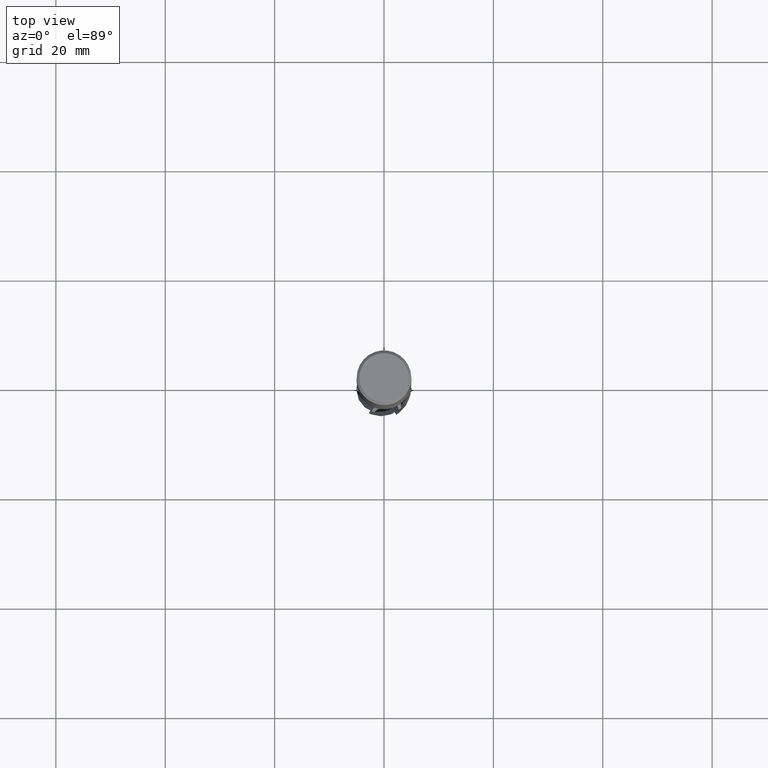
[diagram: clean part render]
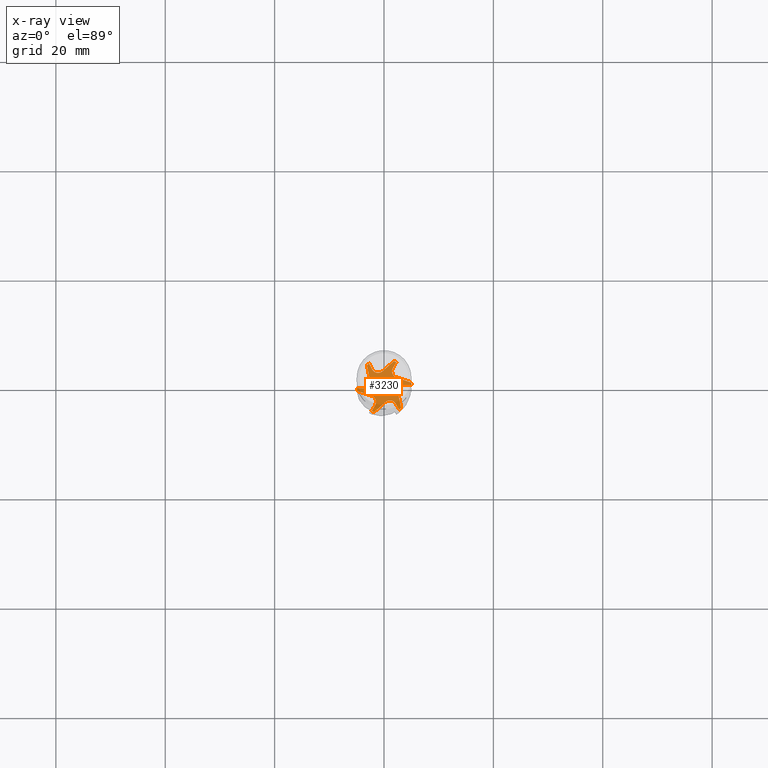
[diagram: x-ray — body ghosted, one internal face saturated and labeled with its STEP entity id]
A machine part, top view, then the same camera in x-ray: the body is ghosted and one INTERNAL B-rep face — a face not visible from any outside direction — is saturated and labeled: STEP entity #3230.
In plain terms, the highlighted planar face has unit normal (0, 0, -1).
Its self-contained STEP definition (entity closure, byte-faithful):
#1866 = VERTEX_POINT('', #1867);
#1867 = CARTESIAN_POINT('', (-3.13089593181059, 3.89839590911082, -95.));
#1882 = VERTEX_POINT('', #1883);
#1883 = CARTESIAN_POINT('', (-2.72242424916442, 4.19385338412797, -95.));
#1893 = EDGE_CURVE('', #1866, #1882, #1894, .T.);
#1894 = CIRCLE('', #1895, 5.);
#1895 = AXIS2_PLACEMENT_3D('', #1896, #1897, #1898);
#1896 = CARTESIAN_POINT('', (3.56192948382191E-31, 5.81707229594993E-15, -95.));
#1897 = DIRECTION('', (3.74939945665464E-33, 6.12323399573677E-17, -1.));
#1898 = DIRECTION('', (-1., 6.12323399573677E-17, 0.));
#1922 = EDGE_CURVE('', #1923, #1925, #1927, .T.);
#1923 = VERTEX_POINT('', #1924);
#1924 = CARTESIAN_POINT('', (1.810661925394, 4.66063336810873, -95.));
#1925 = VERTEX_POINT('', #1926);
#1926 = CARTESIAN_POINT('', (-0.276617074000889, 2.82010910137833, -95.));
#1927 = LINE('', #1928, #1929);
#1928 = CARTESIAN_POINT('', (1.810661925394, 4.66063336810874, -95.));
#1929 = VECTOR('', #1930, 2.78285163056502);
#1930 = DIRECTION('', (-2.08727899939488, -1.8405242667304, 0.));
#1974 = EDGE_CURVE('', #1925, #1975, #1977, .T.);
#1975 = VERTEX_POINT('', #1976);
#1976 = CARTESIAN_POINT('', (-2.16090540956273, 3.15557365704495, -95.));
#1977 = B_SPLINE_CURVE_WITH_KNOTS('', 3, (#1978, #1979, #1980, #1981, #1982, #1983, #1984, #1985, #1986, #1987, #1988, #1989, #1990, #1991, #1992, #1993, #1994, #1995, #1996, #1997, #1998, #1999, #2000, #2001, #2002, #2003, #2004, #2005, #2006, #2007, #2008, #2009, #2010, #2011, #2012, #2013, #2014, #2015, #2016, #2017, #2018, #2019, #2020, #2021, #2022, #2023, #2024, #2025, #2026, #2027, #2028, #2029, #2030, #2031, #2032, #2033, #2034, #2035), .UNSPECIFIED., .F., .U., (4, 3, 3, 3, 3, 3, 3, 3, 3, 3, 3, 3, 3, 3, 3, 3, 3, 3, 3, 4), (0., 0.132181780226918, 0.264161609050317, 0.395944703751725, 0.527534966261595, 0.658935085210019, 0.790146605647413, 0.921169970287258, 1.05200453455494, 1.09086405534845, 1.10815835505043, 1.24032531467485, 1.37229074739479, 1.50405977109452, 1.63563619688982, 1.76702262867054, 1.89822053065169, 2.02923026666097, 2.16005111334351, 2.1971622963427), .UNSPECIFIED.);
#1978 = CARTESIAN_POINT('', (-0.276617074000886, 2.82010910137834, -95.));
#1979 = CARTESIAN_POINT('', (-0.309664740040039, 2.79096827673463, -95.));
#1980 = CARTESIAN_POINT('', (-0.344340228098947, 2.76357641654165, -95.));
#1981 = CARTESIAN_POINT('', (-0.380340303260003, 2.73817306085881, -95.));
#1982 = CARTESIAN_POINT('', (-0.416285376395114, 2.71280851720683, -95.));
#1983 = CARTESIAN_POINT('', (-0.453655518578435, 2.68935262182036, -95.));
#1984 = CARTESIAN_POINT('', (-0.492124925967068, 2.66800987006412, -95.));
#1985 = CARTESIAN_POINT('', (-0.530536989402815, 2.64669893262044, -95.));
#1986 = CARTESIAN_POINT('', (-0.570156412445319, 2.62743303271986, -95.));
#1987 = CARTESIAN_POINT('', (-0.610638808133471, 2.61037963682731, -95.));
#1988 = CARTESIAN_POINT('', (-0.651061967778511, 2.59335119439113, -95.));
#1989 = CARTESIAN_POINT('', (-0.692462435513561, 2.57847953657634, -95.));
#1990 = CARTESIAN_POINT('', (-0.734481392974172, 2.56589355622461, -95.));
#1991 = CARTESIAN_POINT('', (-0.77643963443599, 2.55332576219672, -95.));
#1992 = CARTESIAN_POINT('', (-0.819135528157474, 2.54300079651158, -95.));
#1993 = CARTESIAN_POINT('', (-0.862200094628772, 2.53500788790865, -95.));
#1994 = CARTESIAN_POINT('', (-0.905202850553933, 2.5270264515226, -95.));
#1995 = CARTESIAN_POINT('', (-0.948696828047242, 2.52134742112806, -95.));
#1996 = CARTESIAN_POINT('', (-0.992307226423857, 2.51801973463794, -95.));
#1997 = CARTESIAN_POINT('', (-1.03585508799532, 2.51469682001163, -95.));
#1998 = CARTESIAN_POINT('', (-1.07964385408409, 2.51370896696819, -95.));
#1999 = CARTESIAN_POINT('', (-1.12329726283057, 2.51506466379024, -95.));
#2000 = CARTESIAN_POINT('', (-1.16688776844645, 2.51641840709763, -95.));
#2001 = CARTESIAN_POINT('', (-1.21046788951439, 2.52011280089533, -95.));
#2002 = CARTESIAN_POINT('', (-1.25366423309878, 2.52611619174798, -95.));
#2003 = CARTESIAN_POINT('', (-1.26649409362621, 2.52789927478094, -95.));
#2004 = CARTESIAN_POINT('', (-1.27929723352474, 2.52988649837834, -95.));
#2005 = CARTESIAN_POINT('', (-1.2920639567889, 2.53207635758662, -95.));
#2006 = CARTESIAN_POINT('', (-1.2977457442591, 2.53305094709982, -95.));
#2007 = CARTESIAN_POINT('', (-1.30342078143895, 2.53406574292223, -95.));
#2008 = CARTESIAN_POINT('', (-1.30908821695109, 2.5351205928127, -95.));
#2009 = CARTESIAN_POINT('', (-1.35240004416674, 2.5431819948519, -95.));
#2010 = CARTESIAN_POINT('', (-1.39533804281387, 2.5536027114388, -95.));
#2011 = CARTESIAN_POINT('', (-1.43752680686344, 2.56629163446502, -95.));
#2012 = CARTESIAN_POINT('', (-1.47965124189276, 2.57896120954387, -95.));
#2013 = CARTESIAN_POINT('', (-1.52115121460268, 2.59392889767512, -95.));
#2014 = CARTESIAN_POINT('', (-1.56166499483303, 2.61106423457477, -95.));
#2015 = CARTESIAN_POINT('', (-1.60211847691017, 2.62817406832059, -95.));
#2016 = CARTESIAN_POINT('', (-1.64170598118759, 2.64749468518473, -95.));
#2017 = CARTESIAN_POINT('', (-1.68008347147446, 2.6688581788657, -95.));
#2018 = CARTESIAN_POINT('', (-1.71840486796933, 2.69019044696725, -95.));
#2019 = CARTESIAN_POINT('', (-1.75563056199583, 2.71362126732865, -95.));
#2020 = CARTESIAN_POINT('', (-1.79143798570451, 2.73894760735286, -95.));
#2021 = CARTESIAN_POINT('', (-1.82719370413132, 2.7642373765933, -95.));
#2022 = CARTESIAN_POINT('', (-1.86163830917815, 2.79149006757793, -95.));
#2023 = CARTESIAN_POINT('', (-1.8944741911566, 2.82047021048906, -95.));
#2024 = CARTESIAN_POINT('', (-1.92726295607613, 2.84940876904129, -95.));
#2025 = CARTESIAN_POINT('', (-1.9585418549032, 2.88015297659738, -95.));
#2026 = CARTESIAN_POINT('', (-1.98804140378726, 2.91243795594792, -95.));
#2027 = CARTESIAN_POINT('', (-2.01749864398192, 2.94467663170348, -95.));
#2028 = CARTESIAN_POINT('', (-2.04526606287668, 2.9785440345026, -95.));
#2029 = CARTESIAN_POINT('', (-2.07110511408433, 3.01374921376711, -95.));
#2030 = CARTESIAN_POINT('', (-2.09690691064866, 3.04890363434138, -95.));
#2031 = CARTESIAN_POINT('', (-2.12085963827838, 3.08549241606467, -95.));
#2032 = CARTESIAN_POINT('', (-2.14275811379077, 3.12320213314254, -95.));
#2033 = CARTESIAN_POINT('', (-2.14897026080519, 3.13389960412529, -95.));
#2034 = CARTESIAN_POINT('', (-2.1550207524491, 3.14469259705015, -95.));
#2035 = CARTESIAN_POINT('', (-2.16090540956273, 3.15557365704495, -95.));
#2084 = EDGE_CURVE('', #1975, #1882, #2085, .T.);
#2085 = LINE('', #2086, #2087);
#2086 = CARTESIAN_POINT('', (-2.16090540956273, 3.15557365704495, -95.));
#2087 = VECTOR('', #2088, 1.18039323909416);
#2088 = DIRECTION('', (-0.561518839601487, 1.03827972708312, 0.));
#2110 = VERTEX_POINT('', #2111);
#2111 = CARTESIAN_POINT('', (-4.94155785720459, -0.76223745899791, -95.));
#2126 = VERTEX_POINT('', #2127);
#2127 = CARTESIAN_POINT('', (-4.99319569498437, -0.260761867590947, -95.));
#2137 = EDGE_CURVE('', #2110, #2126, #2138, .T.);
#2138 = CIRCLE('', #2139, 5.);
#2139 = AXIS2_PLACEMENT_3D('', #2140, #2141, #2142);
#2140 = CARTESIAN_POINT('', (3.56192948382191E-31, 5.81707229594993E-15, -95.));
#2141 = DIRECTION('', (3.74939945665464E-33, 6.12323399573677E-17, -1.));
#2142 = DIRECTION('', (-1., 6.12323399573677E-17, 0.));
#2166 = EDGE_CURVE('', #2167, #2169, #2171, .T.);
#2167 = VERTEX_POINT('', #2168);
#2168 = CARTESIAN_POINT('', (-2.58059466023778, 1.17049713748388, -95.));
#2169 = VERTEX_POINT('', #2170);
#2170 = CARTESIAN_POINT('', (-3.81325965529525, -0.293612151334068, -95.));
#2171 = B_SPLINE_CURVE_WITH_KNOTS('', 3, (#2172, #2173, #2174, #2175, #2176, #2177, #2178, #2179, #2180, #2181, #2182, #2183, #2184, #2185, #2186, #2187, #2188, #2189, #2190, #2191, #2192, #2193, #2194, #2195, #2196, #2197, #2198, #2199, #2200, #2201, #2202, #2203, #2204, #2205, #2206, #2207, #2208, #2209, #2210, #2211, #2212, #2213, #2214, #2215, #2216, #2217, #2218, #2219, #2220, #2221, #2222, #2223, #2224, #2225, #2226, #2227, #2228, #2229), .UNSPECIFIED., .F., .U., (4, 3, 3, 3, 3, 3, 3, 3, 3, 3, 3, 3, 3, 3, 3, 3, 3, 3, 3, 4), (0., 0.132181780226912, 0.264161609050307, 0.395944703751706, 0.527534966261566, 0.658935085209976, 0.790146605647381, 0.921169970287232, 1.05200453455491, 1.09086405534841, 1.10815835505038, 1.24032531467481, 1.37229074739474, 1.50405977109446, 1.63563619688977, 1.76702262867049, 1.89822053065163, 2.02923026666089, 2.16005111334343, 2.19716229634268), .UNSPECIFIED.);
#2172 = CARTESIAN_POINT('', (-2.58059466023778, 1.17049713748387, -95.));
#2173 = CARTESIAN_POINT('', (-2.57188179882868, 1.12730660683633, -95.));
#2174 = CARTESIAN_POINT('', (-2.56549749607412, 1.08358082319221, -95.));
#2175 = CARTESIAN_POINT('', (-2.56149758229193, 1.03970216572316, -95.));
#2176 = CARTESIAN_POINT('', (-2.55750377970147, 0.995890547421279, -95.));
#2177 = CARTESIAN_POINT('', (-2.55587544951993, 0.951799107254254, -95.));
#2178 = CARTESIAN_POINT('', (-2.55662678800667, 0.907812247309041, -95.));
#2179 = CARTESIAN_POINT('', (-2.55737700651986, 0.863890955840071, -95.));
#2180 = CARTESIAN_POINT('', (-2.56050195930044, 0.819946579051691, -95.));
#2181 = CARTESIAN_POINT('', (-2.56597448308077, 0.776361098033428, -95.));
#2182 = CARTESIAN_POINT('', (-2.57143899916668, 0.732839393661502, -95.));
#2183 = CARTESIAN_POINT('', (-2.5792599995702, 0.689549707966997, -95.));
#2184 = CARTESIAN_POINT('', (-2.58936969958438, 0.646867233189709, -95.));
#2185 = CARTESIAN_POINT('', (-2.59946479141761, 0.604246433171715, -95.));
#2186 = CARTESIAN_POINT('', (-2.6118710557018, 0.562108221729059, -95.));
#2187 = CARTESIAN_POINT('', (-2.62648127703719, 0.520816758860493, -95.));
#2188 = CARTESIAN_POINT('', (-2.64107052833076, 0.479584561603531, -95.));
#2189 = CARTESIAN_POINT('', (-2.65789933248689, 0.43907815698543, -95.));
#2190 = CARTESIAN_POINT('', (-2.67682267063893, 0.399646600877059, -95.));
#2191 = CARTESIAN_POINT('', (-2.69571887294367, 0.360271589162531, -95.));
#2192 = CARTESIAN_POINT('', (-2.71675775015722, 0.321855478807556, -95.));
#2193 = CARTESIAN_POINT('', (-2.73975852241819, 0.284728366282341, -95.));
#2194 = CARTESIAN_POINT('', (-2.76272615132052, 0.247654752708874, -95.));
#2195 = CARTESIAN_POINT('', (-2.78771565073488, 0.211760457662888, -95.));
#2196 = CARTESIAN_POINT('', (-2.81451291151432, 0.177353022194532, -95.));
#2197 = CARTESIAN_POINT('', (-2.82247203698163, 0.167133578567247, -95.));
#2198 = CARTESIAN_POINT('', (-2.83059459304925, 0.157039345965617, -95.));
#2199 = CARTESIAN_POINT('', (-2.83887442838641, 0.147077968899915, -95.));
#2200 = CARTESIAN_POINT('', (-2.8425593413982, 0.142644691368419, -95.));
#2201 = CARTESIAN_POINT('', (-2.84627569894998, 0.138237362914451, -95.));
#2202 = CARTESIAN_POINT('', (-2.85002294350838, 0.133856644731862, -95.));
#2203 = CARTESIAN_POINT('', (-2.87866023607227, 0.100378203098382, -95.));
#2204 = CARTESIAN_POINT('', (-2.90915384068572, 0.0684031637757519, -95.));
#2205 = CARTESIAN_POINT('', (-2.94123715239788, 0.0382110838676613, -95.));
#2206 = CARTESIAN_POINT('', (-2.97327154378598, 0.00806504055163335, -95.));
#2207 = CARTESIAN_POINT('', (-3.00698392829852, -0.0203911460058925, -95.));
#2208 = CARTESIAN_POINT('', (-3.04208045547119, -0.0469094404388896, -95.));
#2209 = CARTESIAN_POINT('', (-3.07712474718817, -0.0733882667163283, -95.));
#2210 = CARTESIAN_POINT('', (-3.11365064434802, -0.0980117426609153, -95.));
#2211 = CARTESIAN_POINT('', (-3.15134071773276, -0.120565877342352, -95.));
#2212 = CARTESIAN_POINT('', (-3.18897570207648, -0.143087046164638, -95.));
#2213 = CARTESIAN_POINT('', (-3.22788023475421, -0.163610032684396, -95.));
#2214 = CARTESIAN_POINT('', (-3.26771720045439, -0.181957001248084, -95.));
#2215 = CARTESIAN_POINT('', (-3.30749664228587, -0.200277477116048, -95.));
#2216 = CARTESIAN_POINT('', (-3.34832046752347, -0.216481034617599, -95.));
#2217 = CARTESIAN_POINT('', (-3.38983594847904, -0.230427671111042, -95.));
#2218 = CARTESIAN_POINT('', (-3.43129185779392, -0.244354295213956, -95.));
#2219 = CARTESIAN_POINT('', (-3.47355657197024, -0.256070512422567, -95.));
#2220 = CARTESIAN_POINT('', (-3.5162659586905, -0.265475381481074, -95.));
#2221 = CARTESIAN_POINT('', (-3.5589140909765, -0.274866761937247, -95.));
#2222 = CARTESIAN_POINT('', (-3.60212783160811, -0.281980350698067, -95.));
#2223 = CARTESIAN_POINT('', (-3.64553593679978, -0.286755035821325, -95.));
#2224 = CARTESIAN_POINT('', (-3.68888145635458, -0.291522836822184, -95.));
#2225 = CARTESIAN_POINT('', (-3.73254463463535, -0.293972116577821, -95.));
#2226 = CARTESIAN_POINT('', (-3.7761514453505, -0.294081894136767, -95.));
#2227 = CARTESIAN_POINT('', (-3.78852180048504, -0.294113035771931, -95.));
#2228 = CARTESIAN_POINT('', (-3.80089405236281, -0.293956418778499, -95.));
#2229 = CARTESIAN_POINT('', (-3.81325965529525, -0.29361215133406, -95.));
#2287 = EDGE_CURVE('', #2169, #2126, #2288, .T.);
#2288 = LINE('', #2289, #2290);
#2289 = CARTESIAN_POINT('', (-3.81325965529525, -0.29361215133406, -95.));
#2290 = VECTOR('', #2291, 1.18039323909418);
#2291 = DIRECTION('', (-1.17993603968913, 0.0328502837431074, 0.));
#2312 = EDGE_CURVE('', #1866, #2167, #2313, .T.);
#2313 = LINE('', #2314, #2315);
#2314 = CARTESIAN_POINT('', (-3.1308959318106, 3.89839590911081, -95.));
#2315 = VECTOR('', #2316, 2.78285163056503);
#2316 = DIRECTION('', (0.550301271572817, -2.72789877162694, 0.));
#2338 = VERTEX_POINT('', #2339);
#2339 = CARTESIAN_POINT('', (-1.810661925394, -4.66063336810872, -95.));
#2357 = VERTEX_POINT('', #2358);
#2358 = CARTESIAN_POINT('', (-2.27077144582014, -4.45461525171903, -95.));
#2368 = EDGE_CURVE('', #2338, #2357, #2369, .T.);
#2369 = CIRCLE('', #2370, 5.);
#2370 = AXIS2_PLACEMENT_3D('', #2371, #2372, #2373);
#2371 = CARTESIAN_POINT('', (3.56192948382191E-31, 5.81707229594993E-15, -95.));
#2372 = DIRECTION('', (3.74939945665464E-33, 6.12323399573677E-17, -1.));
#2373 = DIRECTION('', (-1., 6.12323399573677E-17, 0.));
#2397 = EDGE_CURVE('', #2398, #2400, #2402, .T.);
#2398 = VERTEX_POINT('', #2399);
#2399 = CARTESIAN_POINT('', (-2.30397758623689, -1.64961196389445, -95.));
#2400 = VERTEX_POINT('', #2401);
#2401 = CARTESIAN_POINT('', (-1.65235424573252, -3.44918580837901, -95.));
#2402 = B_SPLINE_CURVE_WITH_KNOTS('', 3, (#2403, #2404, #2405, #2406, #2407, #2408, #2409, #2410, #2411, #2412, #2413, #2414, #2415, #2416, #2417, #2418, #2419, #2420, #2421, #2422, #2423, #2424, #2425, #2426, #2427, #2428, #2429, #2430, #2431, #2432, #2433, #2434, #2435, #2436, #2437, #2438, #2439, #2440, #2441, #2442, #2443, #2444, #2445, #2446, #2447, #2448, #2449, #2450, #2451, #2452, #2453, #2454, #2455, #2456, #2457, #2458, #2459, #2460), .UNSPECIFIED., .F., .U., (4, 3, 3, 3, 3, 3, 3, 3, 3, 3, 3, 3, 3, 3, 3, 3, 3, 3, 3, 4), (0., 0.132181780226925, 0.26416160905032, 0.395944703751717, 0.527534966261586, 0.65893508521001, 0.790146605647406, 0.921169970287252, 1.05200453455492, 1.09086405534843, 1.10815835505039, 1.24032531467481, 1.37229074739474, 1.50405977109446, 1.63563619688976, 1.76702262867048, 1.89822053065162, 2.0292302666609, 2.16005111334344, 2.19716229634269), .UNSPECIFIED.);
#2403 = CARTESIAN_POINT('', (-2.30397758623689, -1.64961196389444, -95.));
#2404 = CARTESIAN_POINT('', (-2.26221705878864, -1.66366166989828, -95.));
#2405 = CARTESIAN_POINT('', (-2.22115726797515, -1.67999559334944, -95.));
#2406 = CARTESIAN_POINT('', (-2.18115727903191, -1.69847089513564, -95.));
#2407 = CARTESIAN_POINT('', (-2.14121840330634, -1.71691796978555, -95.));
#2408 = CARTESIAN_POINT('', (-2.10221993094149, -1.7375535145661, -95.));
#2409 = CARTESIAN_POINT('', (-2.0645018620396, -1.76019762275507, -95.));
#2410 = CARTESIAN_POINT('', (-2.02684001711705, -1.78280797678037, -95.));
#2411 = CARTESIAN_POINT('', (-1.99034554685513, -1.80748645366816, -95.));
#2412 = CARTESIAN_POINT('', (-1.95533567494732, -1.83401853879388, -95.));
#2413 = CARTESIAN_POINT('', (-1.92037703138818, -1.86051180072963, -95.));
#2414 = CARTESIAN_POINT('', (-1.88679756405665, -1.88892982860933, -95.));
#2415 = CARTESIAN_POINT('', (-1.85488830661021, -1.9190263230349, -95.));
#2416 = CARTESIAN_POINT('', (-1.82302515698162, -1.94907932902501, -95.));
#2417 = CARTESIAN_POINT('', (-1.79273552754435, -1.98089257478253, -95.));
#2418 = CARTESIAN_POINT('', (-1.76428118240844, -2.01419112904817, -95.));
#2419 = CARTESIAN_POINT('', (-1.73586767777685, -2.04744188991908, -95.));
#2420 = CARTESIAN_POINT('', (-1.70920250443967, -2.08226926414265, -95.));
#2421 = CARTESIAN_POINT('', (-1.68451544421509, -2.1183731337609, -95.));
#2422 = CARTESIAN_POINT('', (-1.65986378494837, -2.15442523084912, -95.));
#2423 = CARTESIAN_POINT('', (-1.63711389607314, -2.19185348816064, -95.));
#2424 = CARTESIAN_POINT('', (-1.61646125958763, -2.2303362975079, -95.));
#2425 = CARTESIAN_POINT('', (-1.59583838287409, -2.26876365438875, -95.));
#2426 = CARTESIAN_POINT('', (-1.57724776122051, -2.30835234323244, -95.));
#2427 = CARTESIAN_POINT('', (-1.56084867841556, -2.34876316955345, -95.));
#2428 = CARTESIAN_POINT('', (-1.55597794335545, -2.36076569621369, -95.));
#2429 = CARTESIAN_POINT('', (-1.55129735952454, -2.37284715241272, -95.));
#2430 = CARTESIAN_POINT('', (-1.54681047159755, -2.38499838868671, -95.));
#2431 = CARTESIAN_POINT('', (-1.54481359713914, -2.3904062557314, -95.));
#2432 = CARTESIAN_POINT('', (-1.54285491751108, -2.39582838000777, -95.));
#2433 = CARTESIAN_POINT('', (-1.54093472655733, -2.40126394808083, -95.));
#2434 = CARTESIAN_POINT('', (-1.52626019190557, -2.4428037917535, -95.));
#2435 = CARTESIAN_POINT('', (-1.51381579787189, -2.48519954766302, -95.));
#2436 = CARTESIAN_POINT('', (-1.50371034553447, -2.52808055059733, -95.));
#2437 = CARTESIAN_POINT('', (-1.49362030189325, -2.57089616899221, -95.));
#2438 = CARTESIAN_POINT('', (-1.48583271369587, -2.61432004368098, -95.));
#2439 = CARTESIAN_POINT('', (-1.4804154606382, -2.65797367501363, -95.));
#2440 = CARTESIAN_POINT('', (-1.47500627027803, -2.70156233503688, -95.));
#2441 = CARTESIAN_POINT('', (-1.47194466316047, -2.74550642784562, -95.));
#2442 = CARTESIAN_POINT('', (-1.47125724625834, -2.78942405620802, -95.));
#2443 = CARTESIAN_POINT('', (-1.47057083410719, -2.83327749313185, -95.));
#2444 = CARTESIAN_POINT('', (-1.47224967275842, -2.877231300013, -95.));
#2445 = CARTESIAN_POINT('', (-1.47627921474992, -2.92090460860089, -95.));
#2446 = CARTESIAN_POINT('', (-1.48030293815458, -2.96451485370929, -95.));
#2447 = CARTESIAN_POINT('', (-1.48668215834534, -3.00797110219549, -95.));
#2448 = CARTESIAN_POINT('', (-1.49536175732246, -3.05089788160006, -95.));
#2449 = CARTESIAN_POINT('', (-1.50402890171782, -3.0937630642552, -95.));
#2450 = CARTESIAN_POINT('', (-1.51501471706707, -3.13622348901988, -95.));
#2451 = CARTESIAN_POINT('', (-1.52822455490326, -3.17791333742894, -95.));
#2452 = CARTESIAN_POINT('', (-1.54141544699462, -3.21954339364067, -95.));
#2453 = CARTESIAN_POINT('', (-1.55686176873148, -3.26052438520061, -95.));
#2454 = CARTESIAN_POINT('', (-1.5744308227155, -3.30050424958837, -95.));
#2455 = CARTESIAN_POINT('', (-1.59197454570597, -3.3404264711635, -95.));
#2456 = CARTESIAN_POINT('', (-1.611684996357, -3.37946453264242, -95.));
#2457 = CARTESIAN_POINT('', (-1.63339333155977, -3.41728402727923, -95.));
#2458 = CARTESIAN_POINT('', (-1.63955153967987, -3.42801263989716, -95.));
#2459 = CARTESIAN_POINT('', (-1.64587329991371, -3.43864901582863, -95.));
#2460 = CARTESIAN_POINT('', (-1.65235424573251, -3.44918580837901, -95.));
#2517 = EDGE_CURVE('', #2400, #2357, #2518, .T.);
#2518 = LINE('', #2519, #2520);
#2519 = CARTESIAN_POINT('', (-1.65235424573251, -3.44918580837901, -95.));
#2520 = VECTOR('', #2521, 1.18039323909418);
#2521 = DIRECTION('', (-0.618417200087631, -1.00542944334002, 0.));
#2542 = EDGE_CURVE('', #2110, #2398, #2543, .T.);
#2543 = LINE('', #2544, #2545);
#2544 = CARTESIAN_POINT('', (-4.94155785720459, -0.762237458997906, -95.));
#2545 = VECTOR('', #2546, 2.78285163056502);
#2546 = DIRECTION('', (2.63758027096769, -0.887374504896537, 0.));
#2568 = VERTEX_POINT('', #2569);
#2569 = CARTESIAN_POINT('', (3.13089593181059, -3.89839590911081, -95.));
#2584 = VERTEX_POINT('', #2585);
#2585 = CARTESIAN_POINT('', (2.72242424916441, -4.19385338412796, -95.));
#2595 = EDGE_CURVE('', #2568, #2584, #2596, .T.);
#2596 = CIRCLE('', #2597, 5.);
#2597 = AXIS2_PLACEMENT_3D('', #2598, #2599, #2600);
#2598 = CARTESIAN_POINT('', (3.56192948382191E-31, 5.81707229594993E-15, -95.));
#2599 = DIRECTION('', (3.74939945665464E-33, 6.12323399573677E-17, -1.));
#2600 = DIRECTION('', (-1., 6.12323399573677E-17, 0.));
#2624 = EDGE_CURVE('', #2625, #2627, #2629, .T.);
#2625 = VERTEX_POINT('', #2626);
#2626 = CARTESIAN_POINT('', (0.276617074000889, -2.82010910137832, -95.));
#2627 = VERTEX_POINT('', #2628);
#2628 = CARTESIAN_POINT('', (2.16090540956273, -3.15557365704494, -95.));
#2629 = B_SPLINE_CURVE_WITH_KNOTS('', 3, (#2630, #2631, #2632, #2633, #2634, #2635, #2636, #2637, #2638, #2639, #2640, #2641, #2642, #2643, #2644, #2645, #2646, #2647, #2648, #2649, #2650, #2651, #2652, #2653, #2654, #2655, #2656, #2657, #2658, #2659, #2660, #2661, #2662, #2663, #2664, #2665, #2666, #2667, #2668, #2669, #2670, #2671, #2672, #2673, #2674, #2675, #2676, #2677, #2678, #2679, #2680, #2681, #2682, #2683, #2684, #2685, #2686, #2687), .UNSPECIFIED., .F., .U., (4, 3, 3, 3, 3, 3, 3, 3, 3, 3, 3, 3, 3, 3, 3, 3, 3, 3, 3, 4), (0., 0.132181780226918, 0.264161609050317, 0.395944703751725, 0.527534966261596, 0.65893508521002, 0.790146605647414, 0.921169970287258, 1.05200453455494, 1.09086405534845, 1.10815835505043, 1.24032531467485, 1.37229074739479, 1.50405977109452, 1.63563619688982, 1.76702262867054, 1.89822053065169, 2.02923026666097, 2.16005111334351, 2.1971622963427), .UNSPECIFIED.);
#2630 = CARTESIAN_POINT('', (0.276617074000885, -2.82010910137833, -95.));
#2631 = CARTESIAN_POINT('', (0.309664740040038, -2.79096827673462, -95.));
#2632 = CARTESIAN_POINT('', (0.344340228098946, -2.76357641654164, -95.));
#2633 = CARTESIAN_POINT('', (0.380340303260003, -2.7381730608588, -95.));
#2634 = CARTESIAN_POINT('', (0.416285376395113, -2.71280851720682, -95.));
#2635 = CARTESIAN_POINT('', (0.453655518578434, -2.68935262182035, -95.));
#2636 = CARTESIAN_POINT('', (0.492124925967068, -2.6680098700641, -95.));
#2637 = CARTESIAN_POINT('', (0.530536989402814, -2.64669893262043, -95.));
#2638 = CARTESIAN_POINT('', (0.570156412445319, -2.62743303271985, -95.));
#2639 = CARTESIAN_POINT('', (0.610638808133471, -2.6103796368273, -95.));
#2640 = CARTESIAN_POINT('', (0.651061967778511, -2.59335119439112, -95.));
#2641 = CARTESIAN_POINT('', (0.692462435513561, -2.57847953657632, -95.));
#2642 = CARTESIAN_POINT('', (0.734481392974173, -2.5658935562246, -95.));
#2643 = CARTESIAN_POINT('', (0.77643963443599, -2.55332576219671, -95.));
#2644 = CARTESIAN_POINT('', (0.819135528157474, -2.54300079651156, -95.));
#2645 = CARTESIAN_POINT('', (0.862200094628772, -2.53500788790864, -95.));
#2646 = CARTESIAN_POINT('', (0.905202850553933, -2.52702645152258, -95.));
#2647 = CARTESIAN_POINT('', (0.948696828047242, -2.52134742112805, -95.));
#2648 = CARTESIAN_POINT('', (0.992307226423857, -2.51801973463793, -95.));
#2649 = CARTESIAN_POINT('', (1.03585508799532, -2.51469682001162, -95.));
#2650 = CARTESIAN_POINT('', (1.07964385408408, -2.51370896696818, -95.));
#2651 = CARTESIAN_POINT('', (1.12329726283057, -2.51506466379023, -95.));
#2652 = CARTESIAN_POINT('', (1.16688776844645, -2.51641840709762, -95.));
#2653 = CARTESIAN_POINT('', (1.21046788951439, -2.52011280089531, -95.));
#2654 = CARTESIAN_POINT('', (1.25366423309878, -2.52611619174797, -95.));
#2655 = CARTESIAN_POINT('', (1.26649409362621, -2.52789927478092, -95.));
#2656 = CARTESIAN_POINT('', (1.27929723352474, -2.52988649837832, -95.));
#2657 = CARTESIAN_POINT('', (1.2920639567889, -2.53207635758661, -95.));
#2658 = CARTESIAN_POINT('', (1.2977457442591, -2.53305094709981, -95.));
#2659 = CARTESIAN_POINT('', (1.30342078143894, -2.53406574292221, -95.));
#2660 = CARTESIAN_POINT('', (1.30908821695109, -2.53512059281269, -95.));
#2661 = CARTESIAN_POINT('', (1.35240004416674, -2.54318199485188, -95.));
#2662 = CARTESIAN_POINT('', (1.39533804281387, -2.55360271143878, -95.));
#2663 = CARTESIAN_POINT('', (1.43752680686344, -2.56629163446501, -95.));
#2664 = CARTESIAN_POINT('', (1.47965124189276, -2.57896120954386, -95.));
#2665 = CARTESIAN_POINT('', (1.52115121460268, -2.59392889767511, -95.));
#2666 = CARTESIAN_POINT('', (1.56166499483303, -2.61106423457476, -95.));
#2667 = CARTESIAN_POINT('', (1.60211847691017, -2.62817406832058, -95.));
#2668 = CARTESIAN_POINT('', (1.64170598118759, -2.64749468518472, -95.));
#2669 = CARTESIAN_POINT('', (1.68008347147446, -2.66885817886569, -95.));
#2670 = CARTESIAN_POINT('', (1.71840486796933, -2.69019044696724, -95.));
#2671 = CARTESIAN_POINT('', (1.75563056199583, -2.71362126732864, -95.));
#2672 = CARTESIAN_POINT('', (1.7914379857045, -2.73894760735284, -95.));
#2673 = CARTESIAN_POINT('', (1.82719370413132, -2.76423737659328, -95.));
#2674 = CARTESIAN_POINT('', (1.86163830917815, -2.79149006757792, -95.));
#2675 = CARTESIAN_POINT('', (1.8944741911566, -2.82047021048905, -95.));
#2676 = CARTESIAN_POINT('', (1.92726295607613, -2.84940876904127, -95.));
#2677 = CARTESIAN_POINT('', (1.9585418549032, -2.88015297659736, -95.));
#2678 = CARTESIAN_POINT('', (1.98804140378726, -2.91243795594791, -95.));
#2679 = CARTESIAN_POINT('', (2.01749864398192, -2.94467663170347, -95.));
#2680 = CARTESIAN_POINT('', (2.04526606287667, -2.97854403450259, -95.));
#2681 = CARTESIAN_POINT('', (2.07110511408433, -3.0137492137671, -95.));
#2682 = CARTESIAN_POINT('', (2.09690691064866, -3.04890363434137, -95.));
#2683 = CARTESIAN_POINT('', (2.12085963827838, -3.08549241606466, -95.));
#2684 = CARTESIAN_POINT('', (2.14275811379077, -3.12320213314253, -95.));
#2685 = CARTESIAN_POINT('', (2.14897026080519, -3.13389960412528, -95.));
#2686 = CARTESIAN_POINT('', (2.1550207524491, -3.14469259705014, -95.));
#2687 = CARTESIAN_POINT('', (2.16090540956273, -3.15557365704494, -95.));
#2744 = EDGE_CURVE('', #2627, #2584, #2745, .T.);
#2745 = LINE('', #2746, #2747);
#2746 = CARTESIAN_POINT('', (2.16090540956273, -3.15557365704494, -95.));
#2747 = VECTOR('', #2748, 1.18039323909416);
#2748 = DIRECTION('', (0.56151883960149, -1.03827972708312, 0.));
#2769 = EDGE_CURVE('', #2338, #2625, #2770, .T.);
#2770 = LINE('', #2771, #2772);
#2771 = CARTESIAN_POINT('', (-1.810661925394, -4.66063336810873, -95.));
#2772 = VECTOR('', #2773, 2.78285163056502);
#2773 = DIRECTION('', (2.08727899939488, 1.8405242667304, 0.));
#2795 = VERTEX_POINT('', #2796);
#2796 = CARTESIAN_POINT('', (4.94155785720459, 0.762237458997922, -95.));
#2811 = VERTEX_POINT('', #2812);
#2812 = CARTESIAN_POINT('', (4.99319569498437, 0.260761867590956, -95.));
#2822 = EDGE_CURVE('', #2795, #2811, #2823, .T.);
#2823 = CIRCLE('', #2824, 5.);
#2824 = AXIS2_PLACEMENT_3D('', #2825, #2826, #2827);
#2825 = CARTESIAN_POINT('', (3.56192948382191E-31, 5.81707229594993E-15, -95.));
#2826 = DIRECTION('', (3.74939945665464E-33, 6.12323399573677E-17, -1.));
#2827 = DIRECTION('', (-1., 6.12323399573677E-17, 0.));
#2851 = EDGE_CURVE('', #2852, #2854, #2856, .T.);
#2852 = VERTEX_POINT('', #2853);
#2853 = CARTESIAN_POINT('', (2.58059466023778, -1.17049713748387, -95.));
#2854 = VERTEX_POINT('', #2855);
#2855 = CARTESIAN_POINT('', (3.81325965529525, 0.293612151334077, -95.));
#2856 = B_SPLINE_CURVE_WITH_KNOTS('', 3, (#2857, #2858, #2859, #2860, #2861, #2862, #2863, #2864, #2865, #2866, #2867, #2868, #2869, #2870, #2871, #2872, #2873, #2874, #2875, #2876, #2877, #2878, #2879, #2880, #2881, #2882, #2883, #2884, #2885, #2886, #2887, #2888, #2889, #2890, #2891, #2892, #2893, #2894, #2895, #2896, #2897, #2898, #2899, #2900, #2901, #2902, #2903, #2904, #2905, #2906, #2907, #2908, #2909, #2910, #2911, #2912, #2913, #2914), .UNSPECIFIED., .F., .U., (4, 3, 3, 3, 3, 3, 3, 3, 3, 3, 3, 3, 3, 3, 3, 3, 3, 3, 3, 4), (0., 0.132181780226912, 0.264161609050307, 0.395944703751707, 0.527534966261567, 0.658935085209977, 0.790146605647382, 0.921169970287232, 1.05200453455491, 1.09086405534841, 1.10815835505038, 1.24032531467481, 1.37229074739474, 1.50405977109447, 1.63563619688977, 1.76702262867049, 1.89822053065163, 2.02923026666089, 2.16005111334343, 2.19716229634268), .UNSPECIFIED.);
#2857 = CARTESIAN_POINT('', (2.58059466023778, -1.17049713748386, -95.));
#2858 = CARTESIAN_POINT('', (2.57188179882868, -1.12730660683632, -95.));
#2859 = CARTESIAN_POINT('', (2.56549749607412, -1.08358082319219, -95.));
#2860 = CARTESIAN_POINT('', (2.56149758229193, -1.03970216572315, -95.));
#2861 = CARTESIAN_POINT('', (2.55750377970147, -0.995890547421268, -95.));
#2862 = CARTESIAN_POINT('', (2.55587544951993, -0.951799107254243, -95.));
#2863 = CARTESIAN_POINT('', (2.55662678800667, -0.90781224730903, -95.));
#2864 = CARTESIAN_POINT('', (2.55737700651986, -0.863890955840059, -95.));
#2865 = CARTESIAN_POINT('', (2.56050195930044, -0.81994657905168, -95.));
#2866 = CARTESIAN_POINT('', (2.56597448308077, -0.776361098033416, -95.));
#2867 = CARTESIAN_POINT('', (2.57143899916668, -0.73283939366149, -95.));
#2868 = CARTESIAN_POINT('', (2.5792599995702, -0.689549707966985, -95.));
#2869 = CARTESIAN_POINT('', (2.58936969958438, -0.646867233189698, -95.));
#2870 = CARTESIAN_POINT('', (2.59946479141761, -0.604246433171704, -95.));
#2871 = CARTESIAN_POINT('', (2.6118710557018, -0.562108221729048, -95.));
#2872 = CARTESIAN_POINT('', (2.62648127703719, -0.520816758860482, -95.));
#2873 = CARTESIAN_POINT('', (2.64107052833076, -0.479584561603519, -95.));
#2874 = CARTESIAN_POINT('', (2.65789933248689, -0.439078156985419, -95.));
#2875 = CARTESIAN_POINT('', (2.67682267063893, -0.399646600877047, -95.));
#2876 = CARTESIAN_POINT('', (2.69571887294367, -0.360271589162519, -95.));
#2877 = CARTESIAN_POINT('', (2.71675775015722, -0.321855478807544, -95.));
#2878 = CARTESIAN_POINT('', (2.73975852241819, -0.28472836628233, -95.));
#2879 = CARTESIAN_POINT('', (2.76272615132052, -0.247654752708862, -95.));
#2880 = CARTESIAN_POINT('', (2.78771565073489, -0.211760457662877, -95.));
#2881 = CARTESIAN_POINT('', (2.81451291151432, -0.177353022194521, -95.));
#2882 = CARTESIAN_POINT('', (2.82247203698164, -0.167133578567236, -95.));
#2883 = CARTESIAN_POINT('', (2.83059459304925, -0.157039345965605, -95.));
#2884 = CARTESIAN_POINT('', (2.83887442838641, -0.147077968899904, -95.));
#2885 = CARTESIAN_POINT('', (2.8425593413982, -0.142644691368408, -95.));
#2886 = CARTESIAN_POINT('', (2.84627569894998, -0.13823736291444, -95.));
#2887 = CARTESIAN_POINT('', (2.85002294350838, -0.133856644731851, -95.));
#2888 = CARTESIAN_POINT('', (2.87866023607227, -0.10037820309837, -95.));
#2889 = CARTESIAN_POINT('', (2.90915384068572, -0.0684031637757406, -95.));
#2890 = CARTESIAN_POINT('', (2.94123715239788, -0.0382110838676498, -95.));
#2891 = CARTESIAN_POINT('', (2.97327154378598, -0.00806504055162204, -95.));
#2892 = CARTESIAN_POINT('', (3.00698392829852, 0.0203911460059042, -95.));
#2893 = CARTESIAN_POINT('', (3.04208045547119, 0.0469094404389012, -95.));
#2894 = CARTESIAN_POINT('', (3.07712474718817, 0.0733882667163399, -95.));
#2895 = CARTESIAN_POINT('', (3.11365064434802, 0.0980117426609268, -95.));
#2896 = CARTESIAN_POINT('', (3.15134071773276, 0.120565877342363, -95.));
#2897 = CARTESIAN_POINT('', (3.18897570207648, 0.14308704616465, -95.));
#2898 = CARTESIAN_POINT('', (3.22788023475421, 0.163610032684407, -95.));
#2899 = CARTESIAN_POINT('', (3.26771720045439, 0.181957001248094, -95.));
#2900 = CARTESIAN_POINT('', (3.30749664228587, 0.200277477116058, -95.));
#2901 = CARTESIAN_POINT('', (3.34832046752347, 0.216481034617609, -95.));
#2902 = CARTESIAN_POINT('', (3.38983594847904, 0.230427671111052, -95.));
#2903 = CARTESIAN_POINT('', (3.43129185779392, 0.244354295213966, -95.));
#2904 = CARTESIAN_POINT('', (3.47355657197024, 0.256070512422577, -95.));
#2905 = CARTESIAN_POINT('', (3.5162659586905, 0.265475381481084, -95.));
#2906 = CARTESIAN_POINT('', (3.55891409097651, 0.274866761937257, -95.));
#2907 = CARTESIAN_POINT('', (3.60212783160811, 0.281980350698078, -95.));
#2908 = CARTESIAN_POINT('', (3.64553593679978, 0.286755035821336, -95.));
#2909 = CARTESIAN_POINT('', (3.68888145635458, 0.291522836822195, -95.));
#2910 = CARTESIAN_POINT('', (3.73254463463535, 0.293972116577818, -95.));
#2911 = CARTESIAN_POINT('', (3.7761514453505, 0.294081894136764, -95.));
#2912 = CARTESIAN_POINT('', (3.78852180048504, 0.294113035771928, -95.));
#2913 = CARTESIAN_POINT('', (3.80089405236281, 0.29395641877851, -95.));
#2914 = CARTESIAN_POINT('', (3.81325965529525, 0.293612151334071, -95.));
#2971 = EDGE_CURVE('', #2854, #2811, #2972, .T.);
#2972 = LINE('', #2973, #2974);
#2973 = CARTESIAN_POINT('', (3.81325965529525, 0.293612151334071, -95.));
#2974 = VECTOR('', #2975, 1.18039323909419);
#2975 = DIRECTION('', (1.17993603968913, -0.0328502837431078, 0.));
#2996 = EDGE_CURVE('', #2568, #2852, #2997, .T.);
#2997 = LINE('', #2998, #2999);
#2998 = CARTESIAN_POINT('', (3.13089593181058, -3.89839590911081, -95.));
#2999 = VECTOR('', #3000, 2.78285163056503);
#3000 = DIRECTION('', (-0.550301271572802, 2.72789877162694, 0.));
#3022 = VERTEX_POINT('', #3023);
#3023 = CARTESIAN_POINT('', (2.27077144582015, 4.45461525171905, -95.));
#3033 = EDGE_CURVE('', #1923, #3022, #3034, .T.);
#3034 = CIRCLE('', #3035, 5.);
#3035 = AXIS2_PLACEMENT_3D('', #3036, #3037, #3038);
#3036 = CARTESIAN_POINT('', (3.56192948382191E-31, 5.81707229594993E-15, -95.));
#3037 = DIRECTION('', (3.74939945665464E-33, 6.12323399573677E-17, -1.));
#3038 = DIRECTION('', (-1., 6.12323399573677E-17, 0.));
#3064 = EDGE_CURVE('', #3065, #3067, #3069, .T.);
#3065 = VERTEX_POINT('', #3066);
#3066 = CARTESIAN_POINT('', (2.30397758623689, 1.64961196389446, -95.));
#3067 = VERTEX_POINT('', #3068);
#3068 = CARTESIAN_POINT('', (1.65235424573252, 3.44918580837902, -95.));
#3069 = B_SPLINE_CURVE_WITH_KNOTS('', 3, (#3070, #3071, #3072, #3073, #3074, #3075, #3076, #3077, #3078, #3079, #3080, #3081, #3082, #3083, #3084, #3085, #3086, #3087, #3088, #3089, #3090, #3091, #3092, #3093, #3094, #3095, #3096, #3097, #3098, #3099, #3100, #3101, #3102, #3103, #3104, #3105, #3106, #3107, #3108, #3109, #3110, #3111, #3112, #3113, #3114, #3115, #3116, #3117, #3118, #3119, #3120, #3121, #3122, #3123, #3124, #3125, #3126, #3127), .UNSPECIFIED., .F., .U., (4, 3, 3, 3, 3, 3, 3, 3, 3, 3, 3, 3, 3, 3, 3, 3, 3, 3, 3, 4), (0., 0.132181780226924, 0.264161609050319, 0.395944703751716, 0.527534966261586, 0.65893508521001, 0.790146605647407, 0.921169970287252, 1.05200453455492, 1.09086405534843, 1.10815835505039, 1.24032531467481, 1.37229074739474, 1.50405977109446, 1.63563619688975, 1.76702262867048, 1.89822053065162, 2.0292302666609, 2.16005111334344, 2.19716229634269), .UNSPECIFIED.);
#3070 = CARTESIAN_POINT('', (2.30397758623689, 1.64961196389446, -95.));
#3071 = CARTESIAN_POINT('', (2.26221705878864, 1.66366166989829, -95.));
#3072 = CARTESIAN_POINT('', (2.22115726797515, 1.67999559334945, -95.));
#3073 = CARTESIAN_POINT('', (2.18115727903191, 1.69847089513565, -95.));
#3074 = CARTESIAN_POINT('', (2.14121840330634, 1.71691796978556, -95.));
#3075 = CARTESIAN_POINT('', (2.10221993094149, 1.73755351456612, -95.));
#3076 = CARTESIAN_POINT('', (2.0645018620396, 1.76019762275508, -95.));
#3077 = CARTESIAN_POINT('', (2.02684001711705, 1.78280797678038, -95.));
#3078 = CARTESIAN_POINT('', (1.99034554685513, 1.80748645366818, -95.));
#3079 = CARTESIAN_POINT('', (1.95533567494732, 1.83401853879389, -95.));
#3080 = CARTESIAN_POINT('', (1.92037703138818, 1.86051180072964, -95.));
#3081 = CARTESIAN_POINT('', (1.88679756405665, 1.88892982860934, -95.));
#3082 = CARTESIAN_POINT('', (1.85488830661021, 1.91902632303491, -95.));
#3083 = CARTESIAN_POINT('', (1.82302515698162, 1.94907932902502, -95.));
#3084 = CARTESIAN_POINT('', (1.79273552754435, 1.98089257478254, -95.));
#3085 = CARTESIAN_POINT('', (1.76428118240844, 2.01419112904819, -95.));
#3086 = CARTESIAN_POINT('', (1.73586767777685, 2.04744188991909, -95.));
#3087 = CARTESIAN_POINT('', (1.70920250443967, 2.08226926414266, -95.));
#3088 = CARTESIAN_POINT('', (1.68451544421509, 2.11837313376091, -95.));
#3089 = CARTESIAN_POINT('', (1.65986378494837, 2.15442523084913, -95.));
#3090 = CARTESIAN_POINT('', (1.63711389607314, 2.19185348816065, -95.));
#3091 = CARTESIAN_POINT('', (1.61646125958763, 2.23033629750791, -95.));
#3092 = CARTESIAN_POINT('', (1.59583838287409, 2.26876365438876, -95.));
#3093 = CARTESIAN_POINT('', (1.57724776122051, 2.30835234323245, -95.));
#3094 = CARTESIAN_POINT('', (1.56084867841556, 2.34876316955346, -95.));
#3095 = CARTESIAN_POINT('', (1.55597794335545, 2.3607656962137, -95.));
#3096 = CARTESIAN_POINT('', (1.55129735952454, 2.37284715241273, -95.));
#3097 = CARTESIAN_POINT('', (1.54681047159755, 2.38499838868672, -95.));
#3098 = CARTESIAN_POINT('', (1.54481359713914, 2.39040625573141, -95.));
#3099 = CARTESIAN_POINT('', (1.54285491751108, 2.39582838000778, -95.));
#3100 = CARTESIAN_POINT('', (1.54093472655733, 2.40126394808084, -95.));
#3101 = CARTESIAN_POINT('', (1.52626019190557, 2.44280379175351, -95.));
#3102 = CARTESIAN_POINT('', (1.51381579787189, 2.48519954766303, -95.));
#3103 = CARTESIAN_POINT('', (1.50371034553447, 2.52808055059734, -95.));
#3104 = CARTESIAN_POINT('', (1.49362030189325, 2.57089616899222, -95.));
#3105 = CARTESIAN_POINT('', (1.48583271369587, 2.61432004368099, -95.));
#3106 = CARTESIAN_POINT('', (1.4804154606382, 2.65797367501364, -95.));
#3107 = CARTESIAN_POINT('', (1.47500627027803, 2.70156233503689, -95.));
#3108 = CARTESIAN_POINT('', (1.47194466316047, 2.74550642784563, -95.));
#3109 = CARTESIAN_POINT('', (1.47125724625834, 2.78942405620803, -95.));
#3110 = CARTESIAN_POINT('', (1.47057083410719, 2.83327749313186, -95.));
#3111 = CARTESIAN_POINT('', (1.47224967275842, 2.87723130001301, -95.));
#3112 = CARTESIAN_POINT('', (1.47627921474992, 2.9209046086009, -95.));
#3113 = CARTESIAN_POINT('', (1.48030293815458, 2.9645148537093, -95.));
#3114 = CARTESIAN_POINT('', (1.48668215834534, 3.0079711021955, -95.));
#3115 = CARTESIAN_POINT('', (1.49536175732246, 3.05089788160007, -95.));
#3116 = CARTESIAN_POINT('', (1.50402890171782, 3.09376306425521, -95.));
#3117 = CARTESIAN_POINT('', (1.51501471706707, 3.1362234890199, -95.));
#3118 = CARTESIAN_POINT('', (1.52822455490326, 3.17791333742895, -95.));
#3119 = CARTESIAN_POINT('', (1.54141544699462, 3.21954339364068, -95.));
#3120 = CARTESIAN_POINT('', (1.55686176873148, 3.26052438520062, -95.));
#3121 = CARTESIAN_POINT('', (1.5744308227155, 3.30050424958839, -95.));
#3122 = CARTESIAN_POINT('', (1.59197454570597, 3.34042647116351, -95.));
#3123 = CARTESIAN_POINT('', (1.611684996357, 3.37946453264243, -95.));
#3124 = CARTESIAN_POINT('', (1.63339333155977, 3.41728402727924, -95.));
#3125 = CARTESIAN_POINT('', (1.63955153967987, 3.42801263989717, -95.));
#3126 = CARTESIAN_POINT('', (1.64587329991371, 3.43864901582864, -95.));
#3127 = CARTESIAN_POINT('', (1.65235424573251, 3.44918580837902, -95.));
#3184 = EDGE_CURVE('', #3067, #3022, #3185, .T.);
#3185 = LINE('', #3186, #3187);
#3186 = CARTESIAN_POINT('', (1.65235424573251, 3.44918580837902, -95.));
#3187 = VECTOR('', #3188, 1.18039323909418);
#3188 = DIRECTION('', (0.618417200087632, 1.00542944334002, 0.));
#3209 = EDGE_CURVE('', #2795, #3065, #3210, .T.);
#3210 = LINE('', #3211, #3212);
#3211 = CARTESIAN_POINT('', (4.94155785720459, 0.76223745899793, -95.));
#3212 = VECTOR('', #3213, 2.78285163056502);
#3213 = DIRECTION('', (-2.6375802709677, 0.887374504896525, 0.));
#3230 = ADVANCED_FACE('', (#3231), #3257, .T.);
#3231 = FACE_OUTER_BOUND('', #3232, .T.);
#3232 = EDGE_LOOP('', (#3233, #3234, #3235, #3236, #3237, #3238, #3239, #3240, #3241, #3242, #3243, #3244, #3245, #3246, #3247, #3248, #3249, #3250, #3251, #3252, #3253, #3254, #3255, #3256));
#3233 = ORIENTED_EDGE('', *, *, #2624, .F.);
#3234 = ORIENTED_EDGE('', *, *, #2769, .F.);
#3235 = ORIENTED_EDGE('', *, *, #2368, .T.);
#3236 = ORIENTED_EDGE('', *, *, #2517, .F.);
#3237 = ORIENTED_EDGE('', *, *, #2397, .F.);
#3238 = ORIENTED_EDGE('', *, *, #2542, .F.);
#3239 = ORIENTED_EDGE('', *, *, #2137, .T.);
#3240 = ORIENTED_EDGE('', *, *, #2287, .F.);
#3241 = ORIENTED_EDGE('', *, *, #2166, .F.);
#3242 = ORIENTED_EDGE('', *, *, #2312, .F.);
#3243 = ORIENTED_EDGE('', *, *, #1893, .T.);
#3244 = ORIENTED_EDGE('', *, *, #2084, .F.);
#3245 = ORIENTED_EDGE('', *, *, #1974, .F.);
#3246 = ORIENTED_EDGE('', *, *, #1922, .F.);
#3247 = ORIENTED_EDGE('', *, *, #3033, .T.);
#3248 = ORIENTED_EDGE('', *, *, #3184, .F.);
#3249 = ORIENTED_EDGE('', *, *, #3064, .F.);
#3250 = ORIENTED_EDGE('', *, *, #3209, .F.);
#3251 = ORIENTED_EDGE('', *, *, #2822, .T.);
#3252 = ORIENTED_EDGE('', *, *, #2971, .F.);
#3253 = ORIENTED_EDGE('', *, *, #2851, .F.);
#3254 = ORIENTED_EDGE('', *, *, #2996, .F.);
#3255 = ORIENTED_EDGE('', *, *, #2595, .T.);
#3256 = ORIENTED_EDGE('', *, *, #2744, .F.);
#3257 = PLANE('', #3258);
#3258 = AXIS2_PLACEMENT_3D('', #3259, #3260, #3261);
#3259 = CARTESIAN_POINT('', (-136.345257911255, 131.458828246295, -95.));
#3260 = DIRECTION('', (0., 0., -1.));
#3261 = DIRECTION('', (1., -1.11022302462516E-16, 0.));